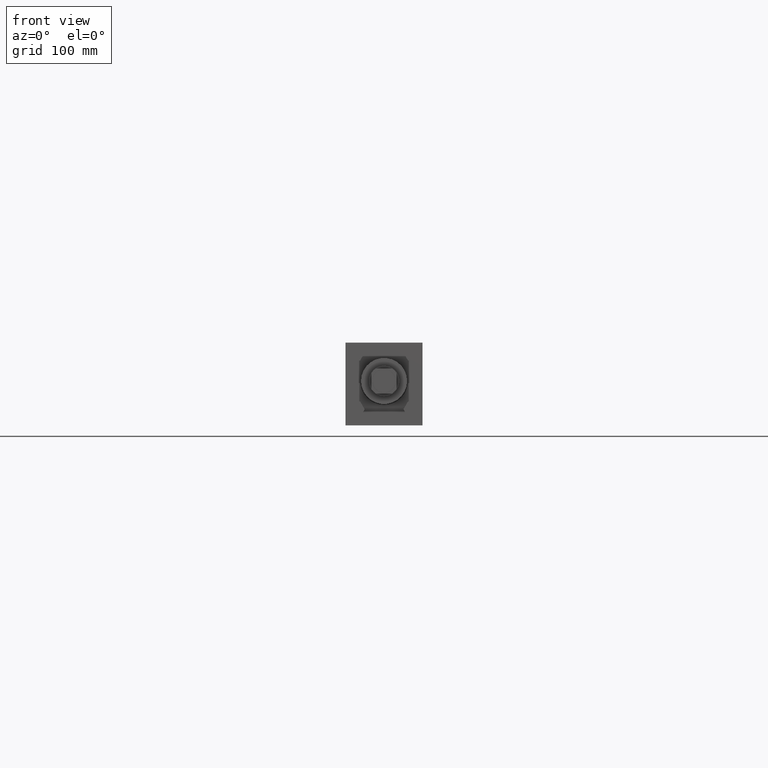
[diagram: clean part render]
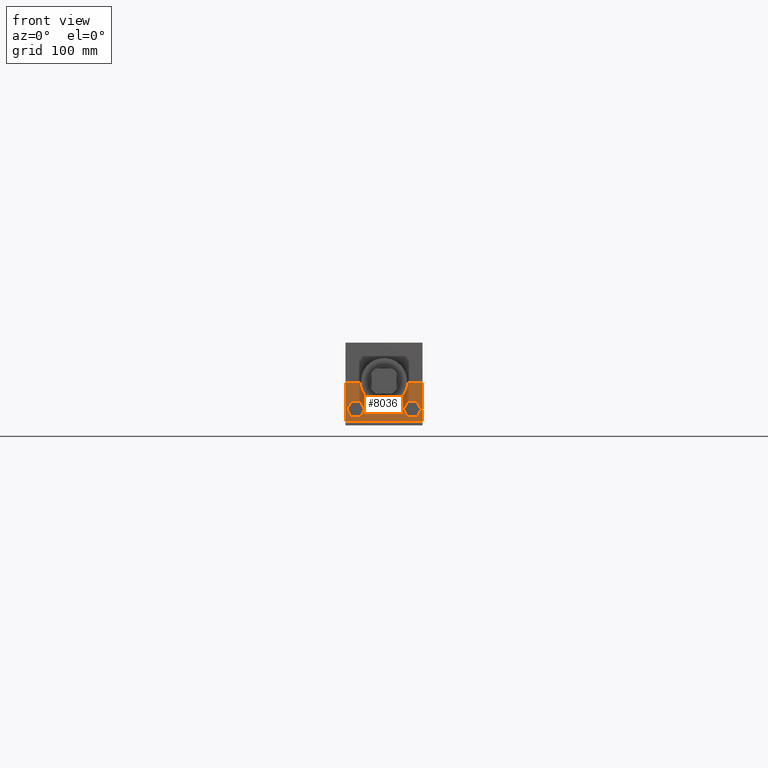
[diagram: same view with one face highlighted and labeled with its STEP entity id]
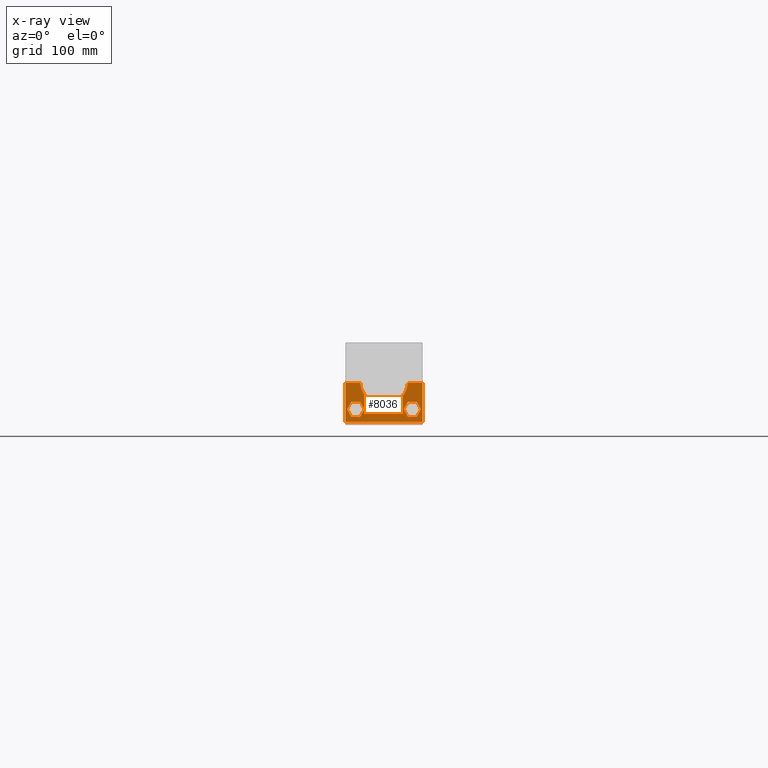
[diagram: x-ray of the same camera — body ghosted, the highlighted face saturated]
A machine part, front view. The second image highlights one B-rep face of the part: STEP entity #8036.
The next image is the same camera in x-ray: the body ghosted, the highlighted face saturated — about 0% of this face is hidden behind the body in this view.
In plain terms, the highlighted planar face has unit normal (0, 1, 0).
Its self-contained STEP definition (entity closure, byte-faithful):
#627=VERTEX_POINT('',#628);
#628=CARTESIAN_POINT('',(3.175000000E+001,2.222500000E+001,-1.587500000E+000));
#629=EDGE_CURVE('',#627,#634,#630,.T.);
#630=LINE('',#631,#632);
#631=CARTESIAN_POINT('',(3.175000000E+001,2.222500000E+001,-1.587500000E+000));
#632=VECTOR('',#633,1.0E+000);
#633=DIRECTION('',(0.0E+000,0.0E+000,-1.0E+000));
#634=VERTEX_POINT('',#635);
#635=CARTESIAN_POINT('',(3.175000000E+001,2.222500000E+001,-3.333750000E+001));
#762=VERTEX_POINT('',#763);
#763=CARTESIAN_POINT('',(-3.175000000E+001,2.222500000E+001,-3.333750000E+001));
#764=EDGE_CURVE('',#769,#762,#765,.T.);
#765=LINE('',#766,#767);
#766=CARTESIAN_POINT('',(-3.175000000E+001,2.222500000E+001,-1.587500000E+000));
#767=VECTOR('',#768,1.0E+000);
#768=DIRECTION('',(0.0E+000,0.0E+000,-1.0E+000));
#769=VERTEX_POINT('',#770);
#770=CARTESIAN_POINT('',(-3.175000000E+001,2.222500000E+001,-1.587500000E+000));
#1056=VERTEX_POINT('',#1057);
#1057=CARTESIAN_POINT('',(1.974829582E+001,2.222500000E+001,-1.587500000E+000));
#1058=EDGE_CURVE('',#627,#1056,#1059,.T.);
#1059=LINE('',#1060,#1061);
#1060=CARTESIAN_POINT('',(3.175000000E+001,2.222500000E+001,-1.587500000E+000));
#1061=VECTOR('',#1062,1.0E+000);
#1062=DIRECTION('',(-1.0E+000,0.0E+000,0.0E+000));
#1139=EDGE_CURVE('',#1140,#769,#1059,.T.);
#1140=VERTEX_POINT('',#1141);
#1141=CARTESIAN_POINT('',(-1.974829582E+001,2.222500000E+001,-1.587500000E+000));
#1147=FACE_OUTER_BOUND('',#1150,.T.);
#1148=FACE_BOUND('',#1151,.T.);
#1149=FACE_BOUND('',#1152,.T.);
#1150=EDGE_LOOP('',(#1153,#1154,#1155,#1156,#1157,#1158));
#1151=EDGE_LOOP('',(#1201,#1202,#1203,#1204,#1205,#1206));
#1152=EDGE_LOOP('',(#1249,#1250,#1251,#1252,#1253,#1254));
#1153=ORIENTED_EDGE('',*,*,#1159,.F.);
#1154=ORIENTED_EDGE('',*,*,#1168,.F.);
#1155=ORIENTED_EDGE('',*,*,#1175,.F.);
#1156=ORIENTED_EDGE('',*,*,#1182,.F.);
#1157=ORIENTED_EDGE('',*,*,#1189,.F.);
#1158=ORIENTED_EDGE('',*,*,#1196,.F.);
#1159=EDGE_CURVE('',#1164,#1165,#1160,.T.);
#1160=LINE('',#1161,#1162);
#1161=CARTESIAN_POINT('',(-1.970182111E+001,2.222500000E+001,-1.701800486E+001));
#1162=VECTOR('',#1163,1.0E+000);
#1163=DIRECTION('',(-1.0E+000,0.0E+000,0.0E+000));
#1164=VERTEX_POINT('',#1166);
#1165=VERTEX_POINT('',#1167);
#1166=CARTESIAN_POINT('',(-1.970182111E+001,2.222500000E+001,-1.701800486E+001));
#1167=CARTESIAN_POINT('',(-2.703417889E+001,2.222500000E+001,-1.701800486E+001));
#1168=EDGE_CURVE('',#1173,#1164,#1169,.T.);
#1169=LINE('',#1170,#1171);
#1170=CARTESIAN_POINT('',(-1.970182111E+001,2.222500000E+001,-1.701800486E+001));
#1171=VECTOR('',#1172,1.0E+000);
#1172=DIRECTION('',(-4.9999999836129E-001,0.0E+000,8.66025404730548E-001));
#1173=VERTEX_POINT('',#1174);
#1174=CARTESIAN_POINT('',(-1.603565345E+001,2.222500000E+001,-2.336800000E+001));
#1175=EDGE_CURVE('',#1180,#1173,#1176,.T.);
#1176=LINE('',#1177,#1178);
#1177=CARTESIAN_POINT('',(-1.970182111E+001,2.222500000E+001,-2.971799514E+001));
#1178=VECTOR('',#1179,1.0E+000);
#1179=DIRECTION('',(4.9999999836129E-001,0.0E+000,8.66025404730548E-001));
#1180=VERTEX_POINT('',#1181);
#1181=CARTESIAN_POINT('',(-1.970182111E+001,2.222500000E+001,-2.971799514E+001));
#1182=EDGE_CURVE('',#1187,#1180,#1183,.T.);
#1183=LINE('',#1184,#1185);
#1184=CARTESIAN_POINT('',(-1.970182111E+001,2.222500000E+001,-2.971799514E+001));
#1185=VECTOR('',#1186,1.0E+000);
#1186=DIRECTION('',(1.0E+000,0.0E+000,0.0E+000));
#1187=VERTEX_POINT('',#1188);
#1188=CARTESIAN_POINT('',(-2.703417889E+001,2.222500000E+001,-2.971799514E+001));
#1189=EDGE_CURVE('',#1194,#1187,#1190,.T.);
#1190=LINE('',#1191,#1192);
#1191=CARTESIAN_POINT('',(-3.070034655E+001,2.222500000E+001,-2.336800000E+001));
#1192=VECTOR('',#1193,1.0E+000);
#1193=DIRECTION('',(4.9999999836129E-001,0.0E+000,-8.66025404730548E-001));
#1194=VERTEX_POINT('',#1195);
#1195=CARTESIAN_POINT('',(-3.070034655E+001,2.222500000E+001,-2.336800000E+001));
#1196=EDGE_CURVE('',#1165,#1194,#1197,.T.);
#1197=LINE('',#1198,#1199);
#1198=CARTESIAN_POINT('',(-3.070034655E+001,2.222500000E+001,-2.336800000E+001));
#1199=VECTOR('',#1200,1.0E+000);
#1200=DIRECTION('',(-4.9999999836129E-001,0.0E+000,
   -8.66025404730549E-001));
#1201=ORIENTED_EDGE('',*,*,#1207,.F.);
#1202=ORIENTED_EDGE('',*,*,#1216,.F.);
#1203=ORIENTED_EDGE('',*,*,#1223,.F.);
#1204=ORIENTED_EDGE('',*,*,#1230,.F.);
#1205=ORIENTED_EDGE('',*,*,#1237,.F.);
#1206=ORIENTED_EDGE('',*,*,#1244,.F.);
#1207=EDGE_CURVE('',#1212,#1213,#1208,.T.);
#1208=LINE('',#1209,#1210);
#1209=CARTESIAN_POINT('',(2.703417889E+001,2.222500000E+001,-1.701800486E+001));
#1210=VECTOR('',#1211,1.0E+000);
#1211=DIRECTION('',(-1.0E+000,0.0E+000,0.0E+000));
#1212=VERTEX_POINT('',#1214);
#1213=VERTEX_POINT('',#1215);
#1214=CARTESIAN_POINT('',(2.703417889E+001,2.222500000E+001,-1.701800486E+001));
#1215=CARTESIAN_POINT('',(1.970182111E+001,2.222500000E+001,-1.701800486E+001));
#1216=EDGE_CURVE('',#1221,#1212,#1217,.T.);
#1217=LINE('',#1218,#1219);
#1218=CARTESIAN_POINT('',(2.703417889E+001,2.222500000E+001,-1.701800486E+001));
#1219=VECTOR('',#1220,1.0E+000);
#1220=DIRECTION('',(-4.9999999836129E-001,0.0E+000,8.66025404730548E-001));
#1221=VERTEX_POINT('',#1222);
#1222=CARTESIAN_POINT('',(3.070034655E+001,2.222500000E+001,-2.336800000E+001));
#1223=EDGE_CURVE('',#1228,#1221,#1224,.T.);
#1224=LINE('',#1225,#1226);
#1225=CARTESIAN_POINT('',(2.703417889E+001,2.222500000E+001,-2.971799514E+001));
#1226=VECTOR('',#1227,1.0E+000);
#1227=DIRECTION('',(4.9999999836129E-001,0.0E+000,8.66025404730548E-001));
#1228=VERTEX_POINT('',#1229);
#1229=CARTESIAN_POINT('',(2.703417889E+001,2.222500000E+001,-2.971799514E+001));
#1230=EDGE_CURVE('',#1235,#1228,#1231,.T.);
#1231=LINE('',#1232,#1233);
#1232=CARTESIAN_POINT('',(2.703417889E+001,2.222500000E+001,-2.971799514E+001));
#1233=VECTOR('',#1234,1.0E+000);
#1234=DIRECTION('',(1.0E+000,0.0E+000,0.0E+000));
#1235=VERTEX_POINT('',#1236);
#1236=CARTESIAN_POINT('',(1.970182111E+001,2.222500000E+001,-2.971799514E+001));
#1237=EDGE_CURVE('',#1242,#1235,#1238,.T.);
#1238=LINE('',#1239,#1240);
#1239=CARTESIAN_POINT('',(1.603565345E+001,2.222500000E+001,-2.336800000E+001));
#1240=VECTOR('',#1241,1.0E+000);
#1241=DIRECTION('',(4.9999999836129E-001,0.0E+000,-8.66025404730548E-001));
#1242=VERTEX_POINT('',#1243);
#1243=CARTESIAN_POINT('',(1.603565345E+001,2.222500000E+001,-2.336800000E+001));
#1244=EDGE_CURVE('',#1213,#1242,#1245,.T.);
#1245=LINE('',#1246,#1247);
#1246=CARTESIAN_POINT('',(1.603565345E+001,2.222500000E+001,-2.336800000E+001));
#1247=VECTOR('',#1248,1.0E+000);
#1248=DIRECTION('',(-4.9999999836129E-001,0.0E+000,
   -8.66025404730549E-001));
#1249=ORIENTED_EDGE('',*,*,#1058,.T.);
#1250=ORIENTED_EDGE('',*,*,#1255,.T.);
#1251=ORIENTED_EDGE('',*,*,#1139,.T.);
#1252=ORIENTED_EDGE('',*,*,#764,.T.);
#1253=ORIENTED_EDGE('',*,*,#1261,.F.);
#1254=ORIENTED_EDGE('',*,*,#629,.F.);
#1255=EDGE_CURVE('',#1056,#1140,#1256,.T.);
#1256=CIRCLE('',#1257,1.981200000E+001);
#1257=AXIS2_PLACEMENT_3D('',#1258,#1259,#1260);
#1258=CARTESIAN_POINT('',(0.000000000E+000,2.222500000E+001,0.000000000E+000));
#1259=DIRECTION('',(0.0E+000,1.0E+000,0.0E+000));
#1260=DIRECTION('',(0.0E+000,0.0E+000,1.0E+000));
#1261=EDGE_CURVE('',#634,#762,#1262,.T.);
#1262=LINE('',#1263,#1264);
#1263=CARTESIAN_POINT('',(3.175000000E+001,2.222500000E+001,-3.333750000E+001));
#1264=VECTOR('',#1265,1.0E+000);
#1265=DIRECTION('',(-1.0E+000,0.0E+000,0.0E+000));
#1266=PLANE('',#1267);
#1267=AXIS2_PLACEMENT_3D('',#1268,#1269,#1270);
#1268=CARTESIAN_POINT('',(3.175000000E+001,2.222500000E+001,-1.587500000E+000));
#1269=DIRECTION('',(0.0E+000,1.0E+000,0.0E+000));
#1270=DIRECTION('',(0.0E+000,0.0E+000,1.0E+000));
#8036=ADVANCED_FACE('',(#1147,#1148,#1149),#1266,.F.);